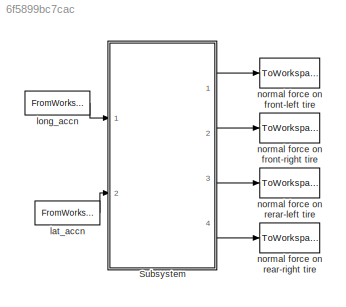
MODEL slx_6f5899bc7cac
KIND model
CONFIG AbsTol = auto
CONFIG FixedStep = auto
CONFIG MaxStep = auto
CONFIG MinStep = auto
CONFIG RelTol = 1e-3
CONFIG SampleTimeConstraint = Unconstrained
CONFIG Solver = ode3
CONFIG SolverMode = Auto
CONFIG SolverName = ode3
CONFIG StartTime = 0
CONFIG StopTime = 5
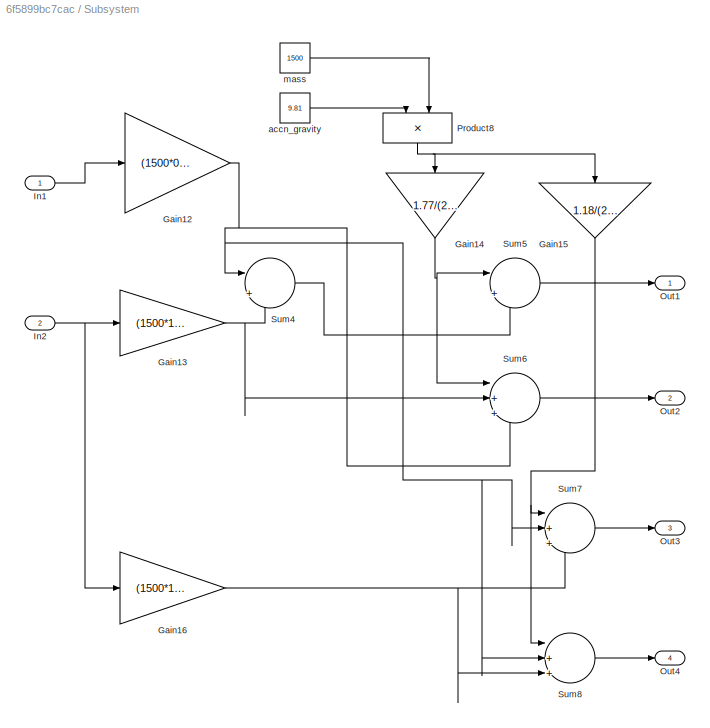
BLOCK [SubSystem] Subsystem
  Ports = [2, 4]
  RequestExecContextInheritance = off
BLOCK [Gain] Subsystem/Gain12
  Gain = (1500*0.7)/(2*2.95)
  OutDataTypeStr = Inherit: Inherit via internal rule
  ParamDataTypeStr = Inherit: Inherit via internal rule
  SaturateOnIntegerOverflow = off
BLOCK [Gain] Subsystem/Gain13
  Gain = (1500*1.77*0.7)/(2.95*1.8)
  OutDataTypeStr = Inherit: Inherit via internal rule
  ParamDataTypeStr = Inherit: Inherit via internal rule
  SaturateOnIntegerOverflow = off
BLOCK [Gain] Subsystem/Gain14
  Gain = 1.77/(2*2.95)
  OutDataTypeStr = Inherit: Inherit via internal rule
  ParamDataTypeStr = Inherit: Inherit via internal rule
  SaturateOnIntegerOverflow = off
BLOCK [Gain] Subsystem/Gain15
  Gain = 1.18/(2*2.95)
  OutDataTypeStr = Inherit: Inherit via internal rule
  ParamDataTypeStr = Inherit: Inherit via internal rule
  SaturateOnIntegerOverflow = off
BLOCK [Gain] Subsystem/Gain16
  Gain = (1500*1.18*0.7)/(2.95*1.8)
  OutDataTypeStr = Inherit: Inherit via internal rule
  ParamDataTypeStr = Inherit: Inherit via internal rule
  SaturateOnIntegerOverflow = off
BLOCK [Inport] Subsystem/In1
  IconDisplay = Port number
BLOCK [Inport] Subsystem/In2
  IconDisplay = Port number
  Port = 2
BLOCK [Outport] Subsystem/Out1
  IconDisplay = Port number
BLOCK [Outport] Subsystem/Out2
  IconDisplay = Port number
  Port = 2
BLOCK [Outport] Subsystem/Out3
  IconDisplay = Port number
  Port = 3
BLOCK [Outport] Subsystem/Out4
  IconDisplay = Port number
  Port = 4
BLOCK [Product] Subsystem/Product8
  InputSameDT = off
  OutDataTypeStr = Inherit: Inherit via internal rule
  Ports = [2, 1]
  RndMeth = Floor
  SaturateOnIntegerOverflow = off
BLOCK [Sum] Subsystem/Sum4
  IconShape = round
  InputSameDT = off
  Inputs = |++
  OutDataTypeStr = Inherit: Inherit via internal rule
  Ports = [2, 1]
  SaturateOnIntegerOverflow = off
BLOCK [Sum] Subsystem/Sum5
  IconShape = round
  InputSameDT = off
  Inputs = |+-
  OutDataTypeStr = Inherit: Inherit via internal rule
  Ports = [2, 1]
  SaturateOnIntegerOverflow = off
BLOCK [Sum] Subsystem/Sum6
  IconShape = round
  InputSameDT = off
  Inputs = |++-
  OutDataTypeStr = Inherit: Inherit via internal rule
  Ports = [3, 1]
  SaturateOnIntegerOverflow = off
BLOCK [Sum] Subsystem/Sum7
  IconShape = round
  InputSameDT = off
  Inputs = |++-
  OutDataTypeStr = Inherit: Inherit via internal rule
  Ports = [3, 1]
  SaturateOnIntegerOverflow = off
BLOCK [Sum] Subsystem/Sum8
  IconShape = round
  InputSameDT = off
  Inputs = |+++
  OutDataTypeStr = Inherit: Inherit via internal rule
  Ports = [3, 1]
  SaturateOnIntegerOverflow = off
BLOCK [Constant] Subsystem/accn_gravity 
  Value = 9.81
BLOCK [Constant] Subsystem/mass
  Value = 1500
BLOCK [FromWorkspace] lat_accn
  SampleTime = 0
  VariableName = lat_accn
  ZeroCross = on
BLOCK [FromWorkspace] long_accn
  SampleTime = 0
  VariableName = long_accn
  ZeroCross = on
BLOCK [ToWorkspace] normal force on front-left tire
  FixptAsFi = on
  MaxDataPoints = inf
  Ports = [1]
  SampleTime = -1
  Save2DSignal = 3-D array (concatenate along third dimension)
  SaveFormat = Timeseries
  VariableName = Fz_fl
BLOCK [ToWorkspace] normal force on front-right tire
  FixptAsFi = on
  MaxDataPoints = inf
  Ports = [1]
  SampleTime = -1
  Save2DSignal = 3-D array (concatenate along third dimension)
  SaveFormat = Timeseries
  VariableName = Fz_fr
BLOCK [ToWorkspace] normal force on rear-right tire
  FixptAsFi = on
  MaxDataPoints = inf
  Ports = [1]
  SampleTime = -1
  Save2DSignal = 3-D array (concatenate along third dimension)
  SaveFormat = Timeseries
  VariableName = Fz_rr
BLOCK [ToWorkspace] normal force on rerar-left tire
  FixptAsFi = on
  MaxDataPoints = inf
  Ports = [1]
  SampleTime = -1
  Save2DSignal = 3-D array (concatenate along third dimension)
  SaveFormat = Timeseries
  VariableName = Fz_rl
NET Subsystem/Gain12:1 -> Subsystem/Sum4:1, Subsystem/Sum6:3, Subsystem/Sum7:2, Subsystem/Sum8:2
NET Subsystem/Gain13:1 -> Subsystem/Sum4:2, Subsystem/Sum6:2
NET Subsystem/Gain14:1 -> Subsystem/Sum5:1, Subsystem/Sum6:1
NET Subsystem/Gain15:1 -> Subsystem/Sum7:1, Subsystem/Sum8:1
NET Subsystem/Gain16:1 -> Subsystem/Sum7:3, Subsystem/Sum8:3
LINE Subsystem/In1:1 -> Subsystem/Gain12:1
NET Subsystem/In2:1 -> Subsystem/Gain13:1, Subsystem/Gain16:1
NET Subsystem/Product8:1 -> Subsystem/Gain14:1, Subsystem/Gain15:1
LINE Subsystem/Sum4:1 -> Subsystem/Sum5:2
LINE Subsystem/Sum5:1 -> Subsystem/Out1:1
LINE Subsystem/Sum6:1 -> Subsystem/Out2:1
LINE Subsystem/Sum7:1 -> Subsystem/Out3:1
LINE Subsystem/Sum8:1 -> Subsystem/Out4:1
LINE Subsystem/accn_gravity :1 -> Subsystem/Product8:1
LINE Subsystem/mass:1 -> Subsystem/Product8:2
LINE Subsystem:1 -> normal force on front-left tire:1
LINE Subsystem:2 -> normal force on front-right tire:1
LINE Subsystem:3 -> normal force on rerar-left tire:1
LINE Subsystem:4 -> normal force on rear-right tire:1
LINE lat_accn:1 -> Subsystem:2
LINE long_accn:1 -> Subsystem:1
note: NET lines group one-source signal fan-out (src -> all destinations, sorted); 1:1 wires keep LINE
